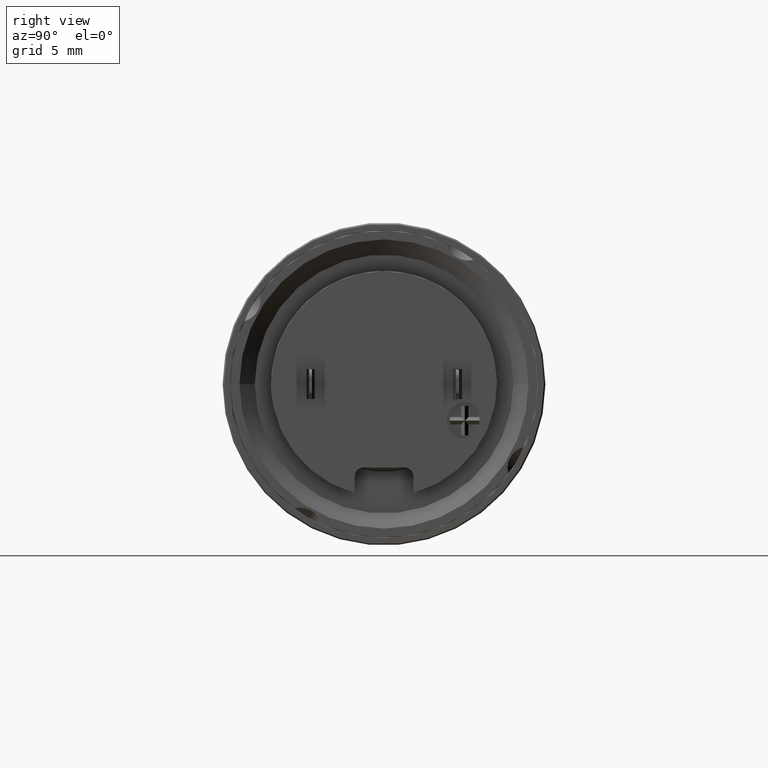
[diagram: clean part render]
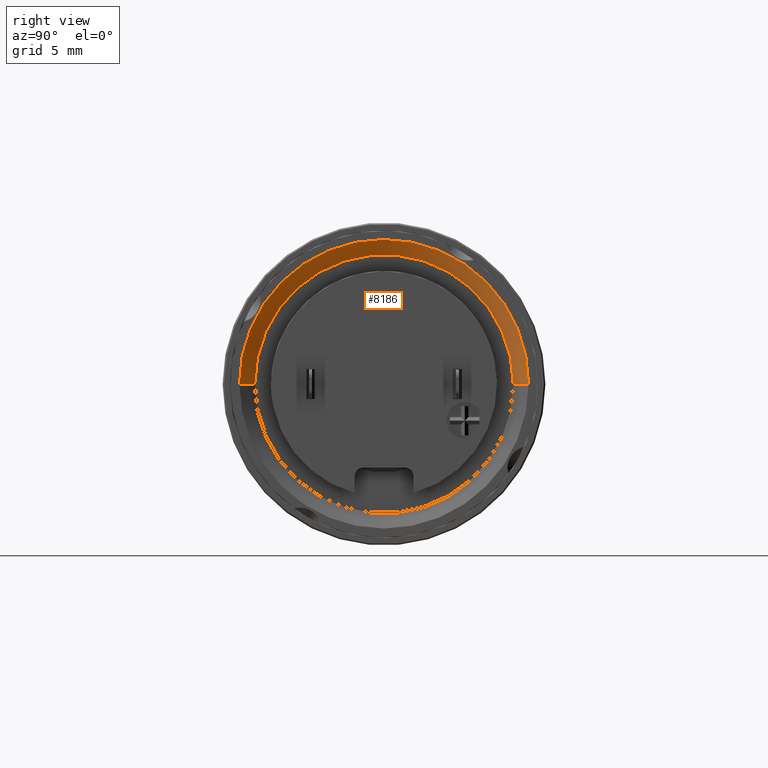
[diagram: same view with one face highlighted and labeled with its STEP entity id]
A machine part, right view. The second image highlights one B-rep face of the part: STEP entity #8186.
In plain terms, the highlighted conical surface has half-angle 60 deg.
Its self-contained STEP definition (entity closure, byte-faithful):
#2003=CARTESIAN_POINT('',(8.5E0,1.120551821217E-14,0.E0));
#2004=DIRECTION('',(-1.E0,0.E0,0.E0));
#2005=DIRECTION('',(0.E0,-1.E0,0.E0));
#2006=AXIS2_PLACEMENT_3D('',#2003,#2004,#2005);
#2157=DIRECTION('',(4.999999999998E-1,8.660254037846E-1,0.E0));
#2158=VECTOR('',#2157,1.2E0);
#2159=CARTESIAN_POINT('',(8.5E0,8.810769515459E0,0.E0));
#2160=LINE('',#2159,#2158);
#2161=DIRECTION('',(-4.999999999998E-1,8.660254037846E-1,0.E0));
#2162=VECTOR('',#2161,1.2E0);
#2163=CARTESIAN_POINT('',(9.1E0,-9.85E0,0.E0));
#2164=LINE('',#2163,#2162);
#2220=CARTESIAN_POINT('',(9.1E0,1.113203940422E-14,0.E0));
#2221=DIRECTION('',(1.E0,0.E0,0.E0));
#2222=DIRECTION('',(0.E0,1.E0,0.E0));
#2223=AXIS2_PLACEMENT_3D('',#2220,#2221,#2222);
#4695=CARTESIAN_POINT('',(8.5E0,8.810769515459E0,0.E0));
#4696=CARTESIAN_POINT('',(9.1E0,9.85E0,0.E0));
#4697=VERTEX_POINT('',#4695);
#4698=VERTEX_POINT('',#4696);
#4699=CARTESIAN_POINT('',(8.5E0,-8.810769515459E0,0.E0));
#4700=VERTEX_POINT('',#4699);
#4701=CARTESIAN_POINT('',(9.1E0,-9.85E0,0.E0));
#4702=VERTEX_POINT('',#4701);
#8172=CARTESIAN_POINT('',(8.8E0,1.116877880819E-14,0.E0));
#8173=DIRECTION('',(1.E0,0.E0,0.E0));
#8174=DIRECTION('',(0.E0,-1.E0,0.E0));
#8175=AXIS2_PLACEMENT_3D('',#8172,#8173,#8174);
#8176=CONICAL_SURFACE('',#8175,9.330384757729E0,6.000000000002E1);
#8178=ORIENTED_EDGE('',*,*,#8177,.F.);
#8179=ORIENTED_EDGE('',*,*,#8089,.F.);
#8181=ORIENTED_EDGE('',*,*,#8180,.F.);
#8183=ORIENTED_EDGE('',*,*,#8182,.F.);
#8184=EDGE_LOOP('',(#8178,#8179,#8181,#8183));
#8185=FACE_OUTER_BOUND('',#8184,.F.);
#8186=ADVANCED_FACE('',(#8185),#8176,.F.);
#2007=CIRCLE('',#2006,8.810769515459E0);
#2224=CIRCLE('',#2223,9.85E0);
#8089=EDGE_CURVE('',#4700,#4697,#2007,.T.);
#8177=EDGE_CURVE('',#4697,#4698,#2160,.T.);
#8180=EDGE_CURVE('',#4702,#4700,#2164,.T.);
#8182=EDGE_CURVE('',#4698,#4702,#2224,.T.);